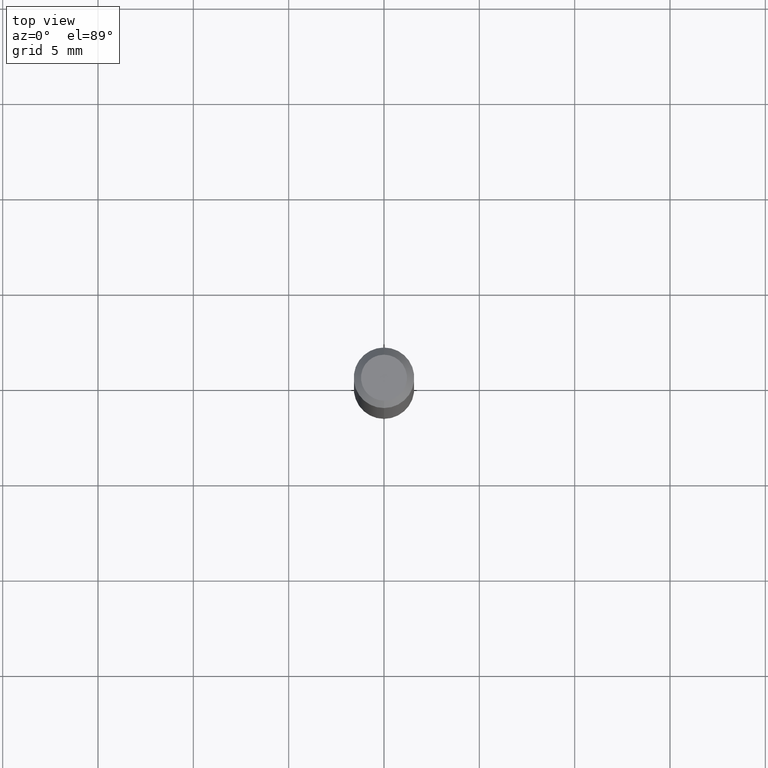
[diagram: clean part render]
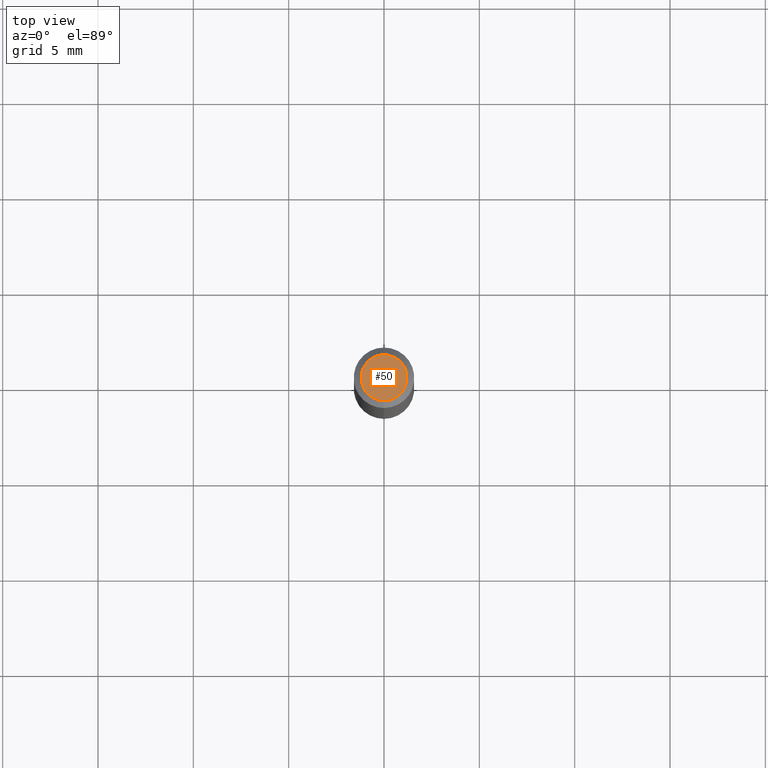
[diagram: same view with one face highlighted and labeled with its STEP entity id]
A machine part, top view. The second image highlights one B-rep face of the part: STEP entity #50.
In plain terms, the highlighted planar face has unit normal (0, -0, -1).
Its self-contained STEP definition (entity closure, byte-faithful):
#10 = ORIENTED_EDGE ( 'NONE', *, *, #75, .T. ) ;
#50 = ADVANCED_FACE ( 'NONE', ( #262 ), #419, .F. ) ;
#69 = EDGE_LOOP ( 'NONE', ( #411, #10 ) ) ;
#75 = EDGE_CURVE ( 'NONE', #283, #205, #397, .T. ) ;
#93 = CARTESIAN_POINT ( 'NONE',  ( 1.601718350350045308E-45, -2.286885407587181283E-31, -6.549819666611384391E-17 ) ) ;
#102 = DIRECTION ( 'NONE',  ( 2.445438854622252545E-29, -3.491524231185932081E-15, -1.000000000000000000 ) ) ;
#124 = DIRECTION ( 'NONE',  ( -6.982962677686266711E-15, -1.000000000000000000, 3.491524231185932476E-15 ) ) ;
#159 = CARTESIAN_POINT ( 'NONE',  ( 1.601718350350045308E-45, -2.286885407587181283E-31, -6.549819666611384391E-17 ) ) ;
#178 = CARTESIAN_POINT ( 'NONE',  ( 3.316907271900976096E-16, 0.04749999999999999362, -1.985964993143886630E-16 ) ) ;
#199 = AXIS2_PLACEMENT_3D ( 'NONE', #159, #319, #124 ) ;
#205 = VERTEX_POINT ( 'NONE', #387 ) ;
#256 = DIRECTION ( 'NONE',  ( -6.982962677686266711E-15, -1.000000000000000000, 3.491524231185932476E-15 ) ) ;
#262 = FACE_OUTER_BOUND ( 'NONE', #69, .T. ) ;
#268 = CARTESIAN_POINT ( 'NONE',  ( -3.773273898774340269E-16, -0.04749999999999999362, 1.003492043152179280E-16 ) ) ;
#283 = VERTEX_POINT ( 'NONE', #268 ) ;
#294 = DIRECTION ( 'NONE',  ( -2.445438854622252826E-29, 3.491524231185932081E-15, 1.000000000000000000 ) ) ;
#319 = DIRECTION ( 'NONE',  ( -2.445438854622252826E-29, 3.491524231185932081E-15, 1.000000000000000000 ) ) ;
#345 = AXIS2_PLACEMENT_3D ( 'NONE', #178, #102, #347 ) ;
#347 = DIRECTION ( 'NONE',  ( 6.982962677686265922E-15, 1.000000000000000000, -3.491524231185932081E-15 ) ) ;
#356 = CIRCLE ( 'NONE', #199, 0.04749999999999999362 ) ;
#360 = EDGE_CURVE ( 'NONE', #205, #283, #356, .T. ) ;
#387 = CARTESIAN_POINT ( 'NONE',  ( 3.840629472727447874E-16, 0.04749999999999999362, -2.313455976474456528E-16 ) ) ;
#397 = CIRCLE ( 'NONE', #413, 0.04749999999999999362 ) ;
#411 = ORIENTED_EDGE ( 'NONE', *, *, #360, .T. ) ;
#413 = AXIS2_PLACEMENT_3D ( 'NONE', #93, #294, #256 ) ;
#419 = PLANE ( 'NONE',  #345 ) ;